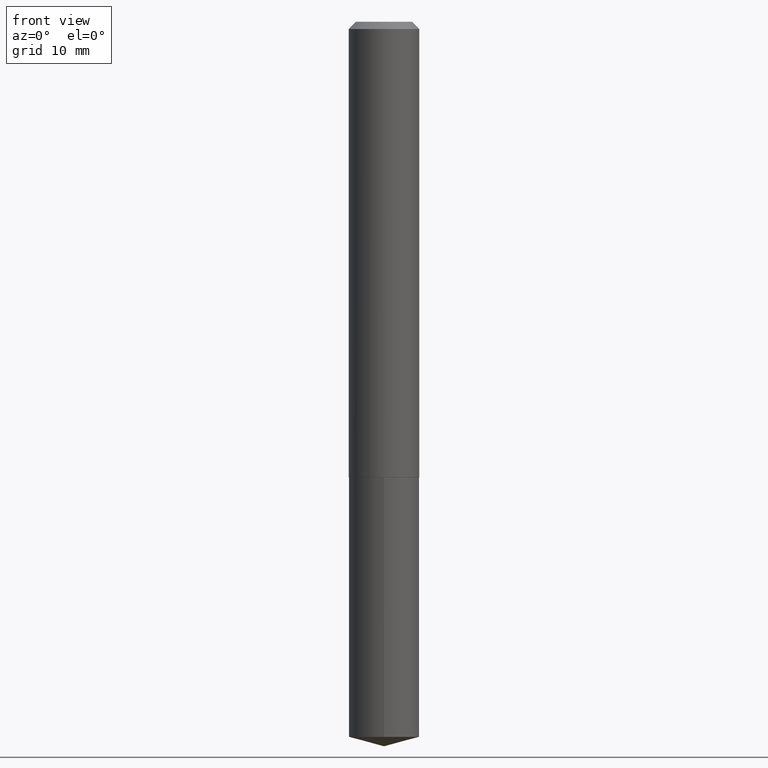
[diagram: clean part render]
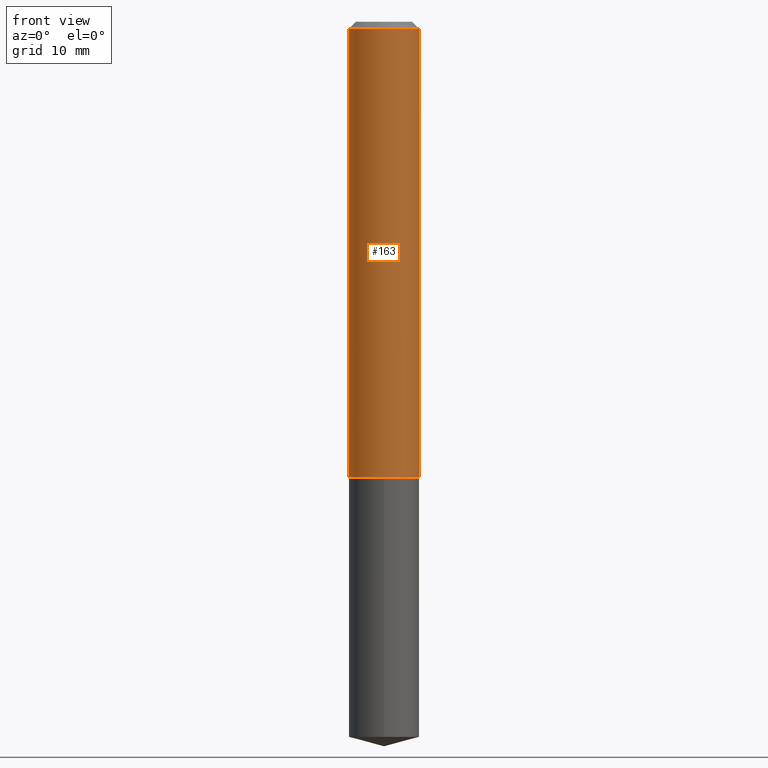
[diagram: same view with one face highlighted and labeled with its STEP entity id]
A machine part, front view. The second image highlights one B-rep face of the part: STEP entity #163.
In plain terms, the highlighted cylindrical surface (edge-blend (fillet) strip) has radius 3.8494 mm, axis along (-0, 0, 1).
Its self-contained STEP definition (entity closure, byte-faithful):
#4 = DIRECTION ( 'NONE',  ( 1.000000000000000000, -6.982962677686267499E-15, 0.000000000000000000 ) ) ;
#10 = DIRECTION ( 'NONE',  ( -2.445468806185136877E-29, 3.491481338843145188E-15, 1.000000000000000000 ) ) ;
#11 = CARTESIAN_POINT ( 'NONE',  ( 0.1515500000000001013, -1.058267993803354512E-15, 7.389845903718745173E-30 ) ) ;
#13 = LINE ( 'NONE', #11, #345 ) ;
#45 = VERTEX_POINT ( 'NONE', #117 ) ;
#63 = CARTESIAN_POINT ( 'NONE',  ( 0.1515500000000002123, -7.887954640714432536E-15, -1.956099999999999950 ) ) ;
#76 = CIRCLE ( 'NONE', #92, 0.1515500000000002123 ) ;
#92 = AXIS2_PLACEMENT_3D ( 'NONE', #364, #215, #124 ) ;
#99 = ORIENTED_EDGE ( 'NONE', *, *, #135, .F. ) ;
#108 = AXIS2_PLACEMENT_3D ( 'NONE', #329, #232, #357 ) ;
#113 = CARTESIAN_POINT ( 'NONE',  ( -0.1515500000000001013, 1.076827516044432551E-15, -7.454646129281315317E-30 ) ) ;
#117 = CARTESIAN_POINT ( 'NONE',  ( -0.1515499999999999903, -2.392570203330529433E-15, -0.03125000000000021511 ) ) ;
#124 = DIRECTION ( 'NONE',  ( 1.000000000000000000, -6.982962677686271444E-15, 0.000000000000000000 ) ) ;
#135 = EDGE_CURVE ( 'NONE', #195, #45, #209, .T. ) ;
#148 = CARTESIAN_POINT ( 'NONE',  ( -0.1515500000000002123, -5.752859130866642909E-15, -1.956099999999999950 ) ) ;
#153 = CARTESIAN_POINT ( 'NONE',  ( 7.642090019328604414E-31, -1.091087918388490513E-16, -0.03125000000000021511 ) ) ;
#163 = ADVANCED_FACE ( 'NONE', ( #384 ), #178, .T. ) ;
#175 = AXIS2_PLACEMENT_3D ( 'NONE', #153, #182, #4 ) ;
#178 = CYLINDRICAL_SURFACE ( 'NONE', #108, 0.1515500000000001013 ) ;
#182 = DIRECTION ( 'NONE',  ( -2.445468806185136597E-29, 3.491481338843145583E-15, 1.000000000000000000 ) ) ;
#195 = VERTEX_POINT ( 'NONE', #148 ) ;
#201 = EDGE_CURVE ( 'NONE', #195, #254, #76, .T. ) ;
#209 = LINE ( 'NONE', #113, #356 ) ;
#214 = CARTESIAN_POINT ( 'NONE',  ( 0.1515499999999999903, -1.167376785642202627E-15, -0.03125000000000021511 ) ) ;
#215 = DIRECTION ( 'NONE',  ( -2.445468806185136597E-29, 3.491481338843145583E-15, 1.000000000000000000 ) ) ;
#231 = EDGE_CURVE ( 'NONE', #45, #347, #367, .T. ) ;
#232 = DIRECTION ( 'NONE',  ( -2.445468806185136597E-29, 3.491481338843145583E-15, 1.000000000000000000 ) ) ;
#246 = ORIENTED_EDGE ( 'NONE', *, *, #373, .T. ) ;
#254 = VERTEX_POINT ( 'NONE', #63 ) ;
#286 = ORIENTED_EDGE ( 'NONE', *, *, #231, .F. ) ;
#329 = CARTESIAN_POINT ( 'NONE',  ( 0.000000000000000000, 0.000000000000000000, 0.000000000000000000 ) ) ;
#336 = ORIENTED_EDGE ( 'NONE', *, *, #201, .T. ) ;
#340 = EDGE_LOOP ( 'NONE', ( #99, #336, #246, #286 ) ) ;
#345 = VECTOR ( 'NONE', #10, 39.37007874015748143 ) ;
#347 = VERTEX_POINT ( 'NONE', #214 ) ;
#355 = DIRECTION ( 'NONE',  ( -2.445468806185136877E-29, 3.491481338843145188E-15, 1.000000000000000000 ) ) ;
#356 = VECTOR ( 'NONE', #355, 39.37007874015748143 ) ;
#357 = DIRECTION ( 'NONE',  ( 1.000000000000000000, -6.982962677686267499E-15, 4.876176775795935232E-29 ) ) ;
#364 = CARTESIAN_POINT ( 'NONE',  ( 4.783581531778745627E-29, -6.829686646911076052E-15, -1.956099999999999950 ) ) ;
#367 = CIRCLE ( 'NONE', #175, 0.1515499999999999903 ) ;
#373 = EDGE_CURVE ( 'NONE', #254, #347, #13, .T. ) ;
#384 = FACE_OUTER_BOUND ( 'NONE', #340, .T. ) ;